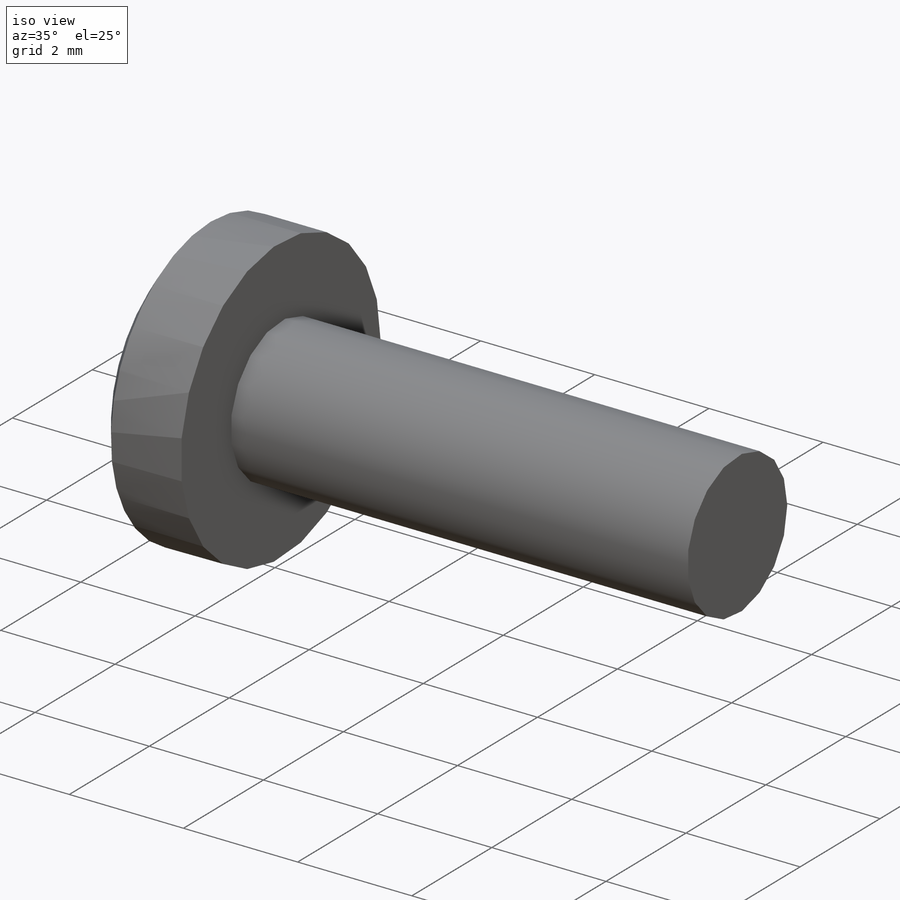
[diagram: iso view]
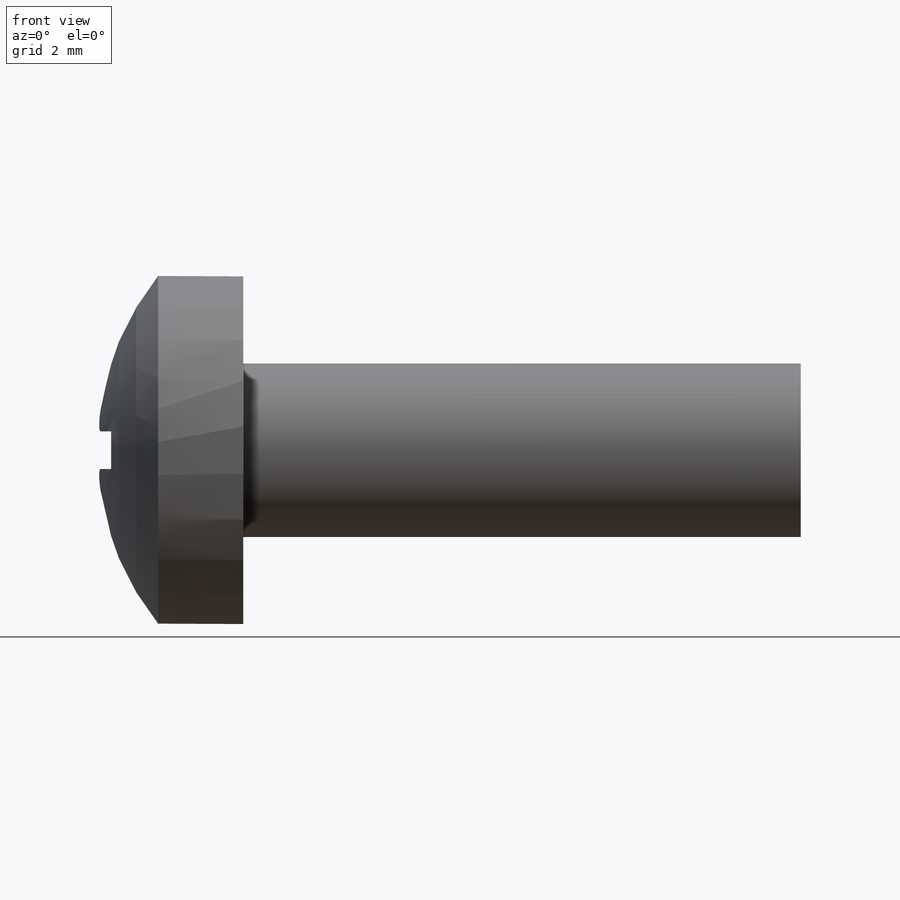
[diagram: front view]
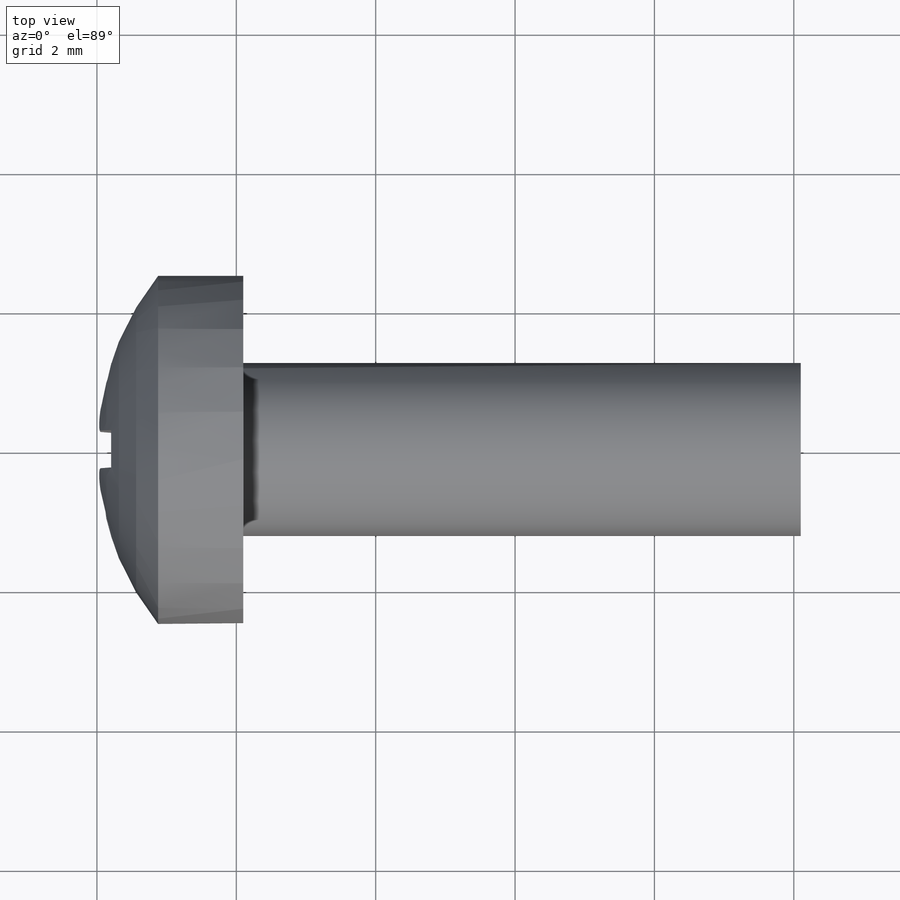
[diagram: top view]
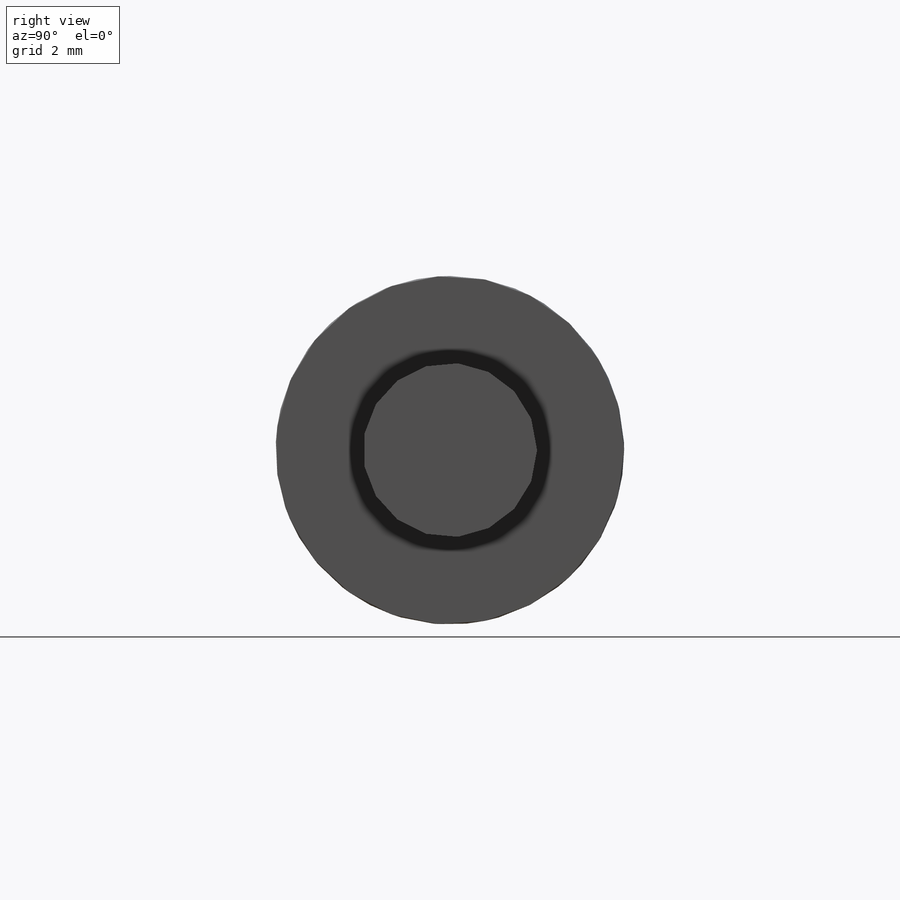
[diagram: right view]
SOLIDWORKS PART (.sldprt)
format: sldprt  version: not decoded by parser v0  size: 477,696 bytes
history: native  units: mm
features: sketch x5, cut_extrude x2, material x1, revolve x1, thread x1, fillet x1, cut_revolve x1, pattern_linear x1 (+12 scaffold rows collapsed)
feature tree (25):
  scaffold x12  (default folders/planes/origin — collapsed)
  material  "材质 <未指定>"
  sketch  "Sketch1"  dims[c1.r=0.3mm c1.r1=4.0mm c1.D2=~41.775281mm c1.dk=5.0mm c1.D4=1.3mm c1.l=8.0mm c1.k=7.5mm c1.a=0.9mm c1.da=3.1mm c2.k=7.5mm c2.D1=~11.17587mm c2.D2=~11.17587mm c3.D1=~11.17587mm c3.D2=~11.17587mm c4.D1=~11.17587mm c4.D2=~11.17587mm c5.D1=~11.17587mm c5.D2=~11.17587mm c6.D1=~11.17587mm c6.D2=~11.17587mm c7.D1=~11.17587mm c7.k=2.1mm]
  revolve  "Base"  [1 undecoded]
  thread  "ThreadCosmetic1"  Diameter=12mm bb=12mm  [1 undecoded]
  sketch  "Sketch6"  dims[D1=~0.267764mm D2=~0.791958mm D3=~0.56245mm D4=~1.453083mm]
  cut_extrude  "CrossRecess"  Depth=1.47mm
  fillet  "Fillet5"  Radius=0.3mm
  sketch  "Sketch7"  dims[c1.D1=~2.019432mm c2.D1=45.0deg c2.D2=~1.796539mm c2.D3=~0.619807mm c3.D3=15.0deg]
  cut_extrude  "Cut-Extrude3"  Depth=40.2mm
  sketch  "Sketch8"  dims[c1.D1=~0.628473mm c2.D1=45.0deg c2.x=1.1mm c2.D2=~1.63764mm c3.D1=~109.010004mm]
  sketch  "Sketch9"  dims[D1=2.5mm D2=0.2435mm]
  cut_revolve  "Cut-Revolve10"  Angle=360deg
  pattern_linear  "LPattern10"  Count1=41 Count2=1 Spacing1=0.2922mm Spacing2=50mm
decode coverage: 11 of 12 modeling features carry decoded parameters
note: ~ marks probable driven/reference dimensions
note: 2 parameter values undecoded
note: suppression state not decoded; provenance and decode notes live in map.json
